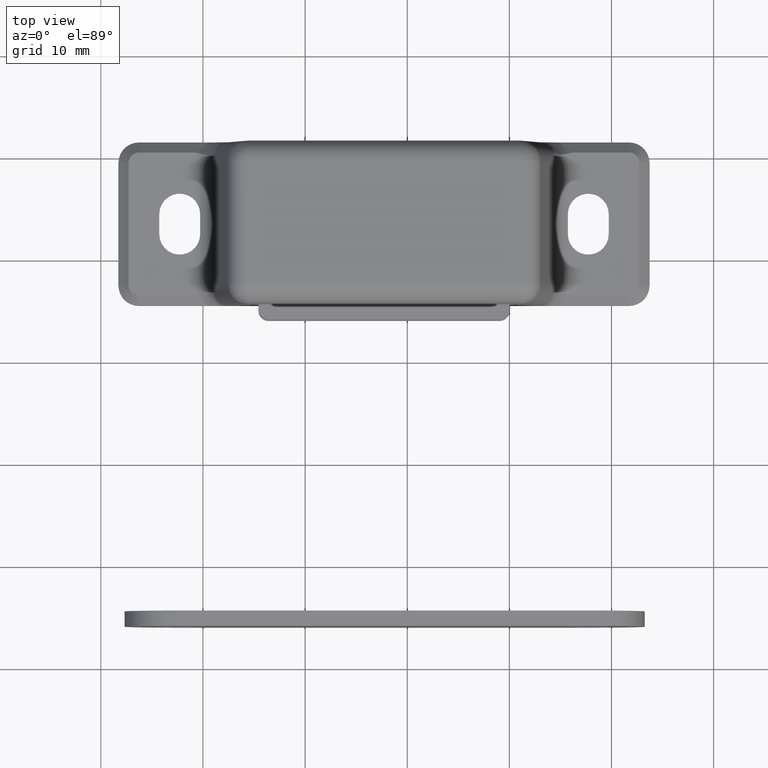
[diagram: clean part render]
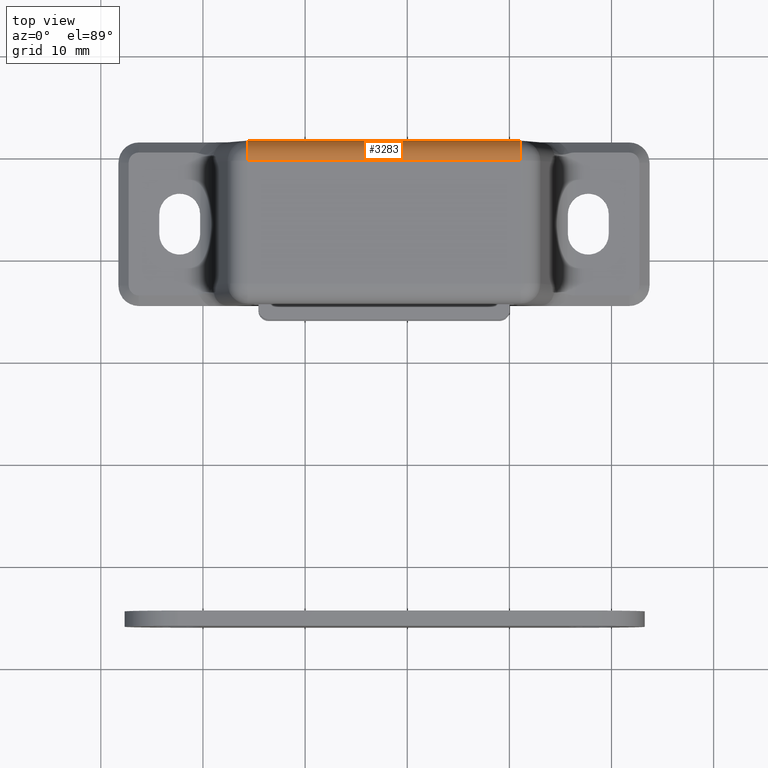
[diagram: same view with one face highlighted and labeled with its STEP entity id]
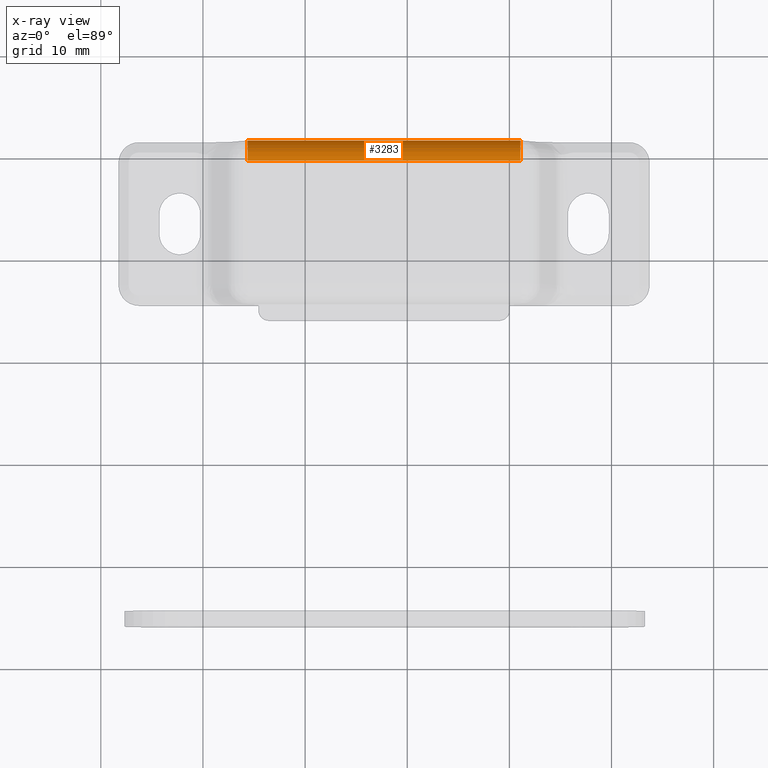
[diagram: x-ray of the same camera — body ghosted, the highlighted face saturated]
A machine part, top view. The second image highlights one B-rep face of the part: STEP entity #3283.
The next image is the same camera in x-ray: the body ghosted, the highlighted face saturated — about 0% of this face is hidden behind the body in this view.
In plain terms, the highlighted cylindrical surface (edge-blend (fillet) strip) has radius 2 mm, axis along (1, 0, 0).
Its self-contained STEP definition (entity closure, byte-faithful):
#300=FACE_OUTER_BOUND('',#497,.T.);
#497=EDGE_LOOP('',(#2505,#2506,#2507,#2508));
#779=LINE('',#5382,#1075);
#780=LINE('',#5385,#1076);
#1075=VECTOR('',#4085,26.7026544567298);
#1076=VECTOR('',#4088,26.7026544567298);
#1313=CIRCLE('',#3534,2.);
#1315=CIRCLE('',#3537,2.);
#1500=VERTEX_POINT('',#5371);
#1502=VERTEX_POINT('',#5377);
#1503=VERTEX_POINT('',#5381);
#1504=VERTEX_POINT('',#5383);
#1875=EDGE_CURVE('',#1500,#1502,#1313,.T.);
#1877=EDGE_CURVE('',#1500,#1503,#779,.T.);
#1878=EDGE_CURVE('',#1504,#1503,#1315,.T.);
#1879=EDGE_CURVE('',#1504,#1502,#780,.T.);
#2505=ORIENTED_EDGE('',*,*,#1875,.F.);
#2506=ORIENTED_EDGE('',*,*,#1877,.T.);
#2507=ORIENTED_EDGE('',*,*,#1878,.F.);
#2508=ORIENTED_EDGE('',*,*,#1879,.T.);
#3178=CYLINDRICAL_SURFACE('',#3536,2.);
#3283=ADVANCED_FACE('',(#300),#3178,.T.);
#3534=AXIS2_PLACEMENT_3D('',#5378,#4079,#4080);
#3536=AXIS2_PLACEMENT_3D('',#5380,#4083,#4084);
#3537=AXIS2_PLACEMENT_3D('',#5384,#4086,#4087);
#4079=DIRECTION('center_axis',(-1.,0.,0.));
#4080=DIRECTION('ref_axis',(0.,0.707106781186548,0.707106781186547));
#4083=DIRECTION('center_axis',(1.,0.,0.));
#4084=DIRECTION('ref_axis',(0.,0.707106781186548,0.707106781186547));
#4085=DIRECTION('',(1.,0.,0.));
#4086=DIRECTION('center_axis',(1.,0.,0.));
#4087=DIRECTION('ref_axis',(0.,0.707106781186548,0.707106781186547));
#4088=DIRECTION('',(-1.,0.,0.));
#5371=CARTESIAN_POINT('',(-13.3513272283649,6.,12.8));
#5377=CARTESIAN_POINT('',(-13.3513272283649,8.,10.8));
#5378=CARTESIAN_POINT('Origin',(-13.3513272283649,6.,10.8));
#5380=CARTESIAN_POINT('Origin',(-7.49999999999995,6.,10.8));
#5381=CARTESIAN_POINT('',(13.3513272283649,6.,12.8));
#5382=CARTESIAN_POINT('',(-7.49999999999995,6.,12.8));
#5383=CARTESIAN_POINT('',(13.3513272283649,8.,10.8));
#5384=CARTESIAN_POINT('Origin',(13.3513272283649,6.,10.8));
#5385=CARTESIAN_POINT('',(-7.49999999999995,8.,10.8));